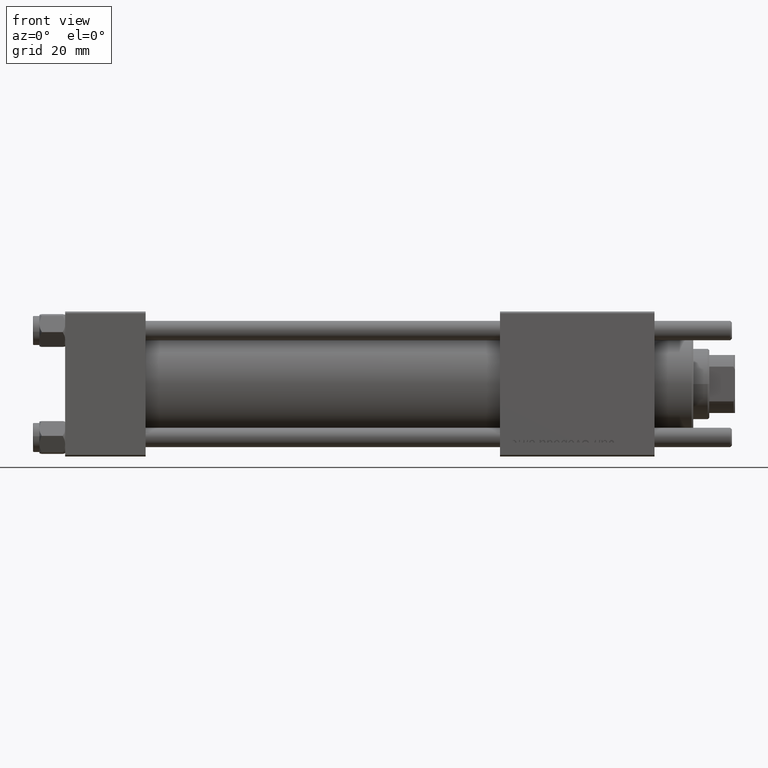
[diagram: clean part render]
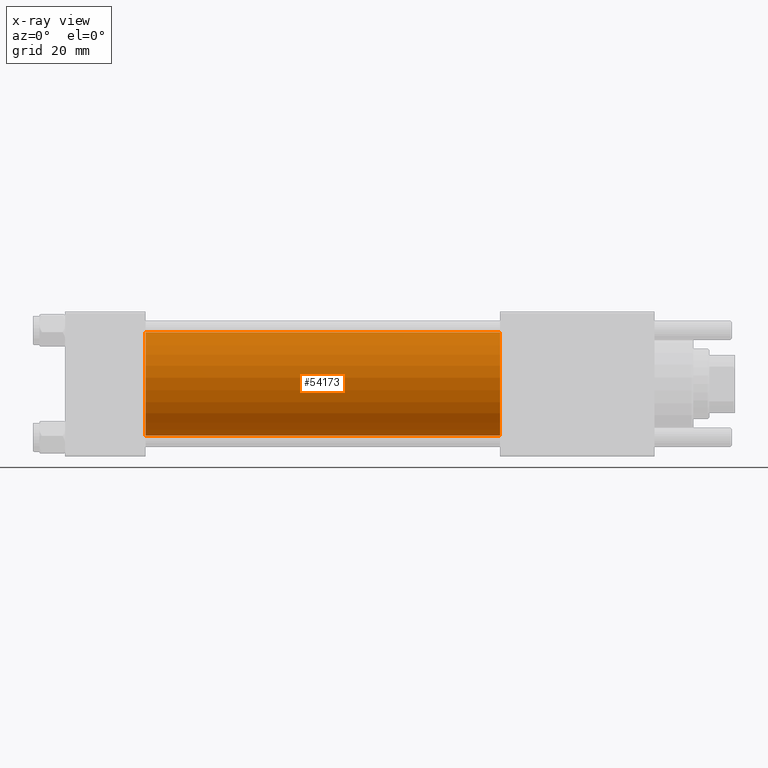
[diagram: x-ray — body ghosted, one internal face saturated and labeled with its STEP entity id]
A machine part, front view, then the same camera in x-ray: the body is ghosted and one INTERNAL B-rep face — a face not visible from any outside direction — is saturated and labeled: STEP entity #54173.
In plain terms, the highlighted cylindrical surface (partial cylindrical patch) has radius 16 mm, axis along (-1, -0, -0).
Its self-contained STEP definition (entity closure, byte-faithful):
#1321 = VERTEX_POINT ( 'NONE', #47746 ) ;
#2758 = EDGE_LOOP ( 'NONE', ( #54490, #6789, #30763, #13200 ) ) ;
#4152 = EDGE_CURVE ( 'NONE', #51481, #35430, #35969, .T. ) ;
#5623 = CARTESIAN_POINT ( 'NONE',  ( 135.0000000000000000, -6.426503353294456087E-16, -16.00000000000000000 ) ) ;
#6183 = DIRECTION ( 'NONE',  ( 0.000000000000000000, 0.000000000000000000, 1.000000000000000000 ) ) ;
#6789 = ORIENTED_EDGE ( 'NONE', *, *, #55367, .T. ) ;
#9665 = DIRECTION ( 'NONE',  ( -1.000000000000000000, -0.000000000000000000, -0.000000000000000000 ) ) ;
#12114 = DIRECTION ( 'NONE',  ( 1.000000000000000000, 0.000000000000000000, 0.000000000000000000 ) ) ;
#12455 = VERTEX_POINT ( 'NONE', #39028 ) ;
#12711 = CARTESIAN_POINT ( 'NONE',  ( 25.00000000000000000, -2.602085213965210642E-15, 0.000000000000000000 ) ) ;
#12843 = EDGE_CURVE ( 'NONE', #1321, #51481, #22620, .T. ) ;
#13200 = ORIENTED_EDGE ( 'NONE', *, *, #12843, .F. ) ;
#15442 = VECTOR ( 'NONE', #32045, 1000.000000000000000 ) ;
#18013 = AXIS2_PLACEMENT_3D ( 'NONE', #21021, #12114, #47155 ) ;
#18295 = CARTESIAN_POINT ( 'NONE',  ( 135.0000000000000000, -2.602085213965210642E-15, 16.00000000000000000 ) ) ;
#19991 = AXIS2_PLACEMENT_3D ( 'NONE', #44963, #9665, #6183 ) ;
#21021 = CARTESIAN_POINT ( 'NONE',  ( 135.0000000000000000, -2.602085213965210642E-15, 0.000000000000000000 ) ) ;
#22620 = LINE ( 'NONE', #18295, #25061 ) ;
#25061 = VECTOR ( 'NONE', #35798, 1000.000000000000000 ) ;
#27456 = CYLINDRICAL_SURFACE ( 'NONE', #19991, 16.00000000000000000 ) ;
#30763 = ORIENTED_EDGE ( 'NONE', *, *, #4152, .F. ) ;
#32045 = DIRECTION ( 'NONE',  ( -1.000000000000000000, -0.000000000000000000, -0.000000000000000000 ) ) ;
#35430 = VERTEX_POINT ( 'NONE', #51660 ) ;
#35798 = DIRECTION ( 'NONE',  ( -1.000000000000000000, -0.000000000000000000, -0.000000000000000000 ) ) ;
#35969 = CIRCLE ( 'NONE', #43303, 16.00000000000000000 ) ;
#38527 = DIRECTION ( 'NONE',  ( 1.000000000000000000, 0.000000000000000000, 0.000000000000000000 ) ) ;
#39028 = CARTESIAN_POINT ( 'NONE',  ( 135.0000000000000000, -6.426503353294456087E-16, -16.00000000000000000 ) ) ;
#43303 = AXIS2_PLACEMENT_3D ( 'NONE', #12711, #38527, #47464 ) ;
#43805 = EDGE_CURVE ( 'NONE', #1321, #12455, #49185, .T. ) ;
#44963 = CARTESIAN_POINT ( 'NONE',  ( 135.0000000000000000, -2.602085213965210642E-15, 0.000000000000000000 ) ) ;
#45522 = FACE_OUTER_BOUND ( 'NONE', #2758, .T. ) ;
#47155 = DIRECTION ( 'NONE',  ( 0.000000000000000000, 0.000000000000000000, -1.000000000000000000 ) ) ;
#47464 = DIRECTION ( 'NONE',  ( 0.000000000000000000, 0.000000000000000000, -1.000000000000000000 ) ) ;
#47746 = CARTESIAN_POINT ( 'NONE',  ( 135.0000000000000000, -2.602085213965210642E-15, 16.00000000000000000 ) ) ;
#49066 = CARTESIAN_POINT ( 'NONE',  ( 25.00000000000000000, -2.602085213965210642E-15, 16.00000000000000000 ) ) ;
#49185 = CIRCLE ( 'NONE', #18013, 16.00000000000000000 ) ;
#49297 = LINE ( 'NONE', #5623, #15442 ) ;
#51481 = VERTEX_POINT ( 'NONE', #49066 ) ;
#51660 = CARTESIAN_POINT ( 'NONE',  ( 25.00000000000000000, -6.426503353294456087E-16, -16.00000000000000000 ) ) ;
#54173 = ADVANCED_FACE ( 'NONE', ( #45522 ), #27456, .F. ) ;
#54490 = ORIENTED_EDGE ( 'NONE', *, *, #43805, .T. ) ;
#55367 = EDGE_CURVE ( 'NONE', #12455, #35430, #49297, .T. ) ;